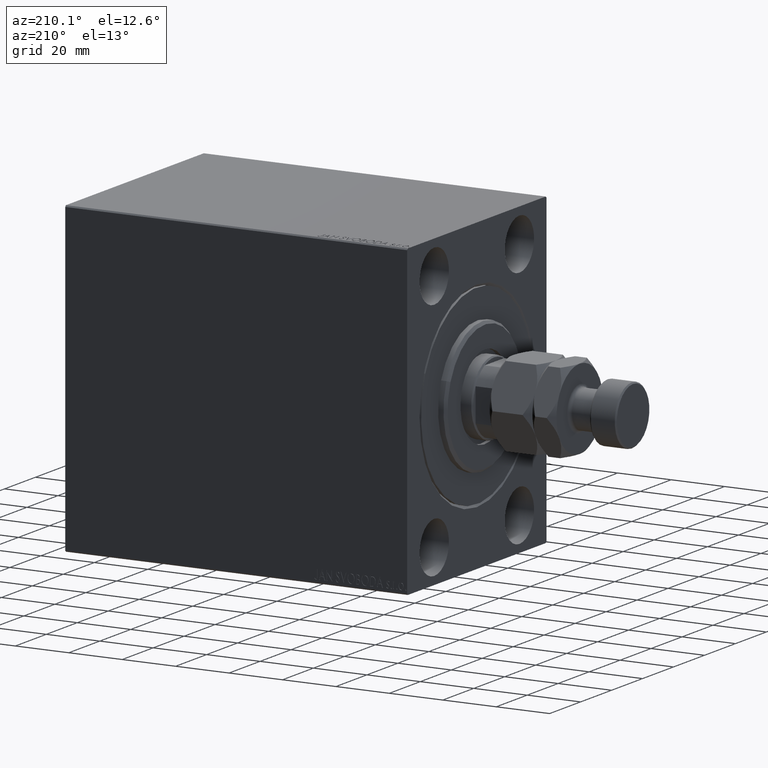
[diagram: clean part render]
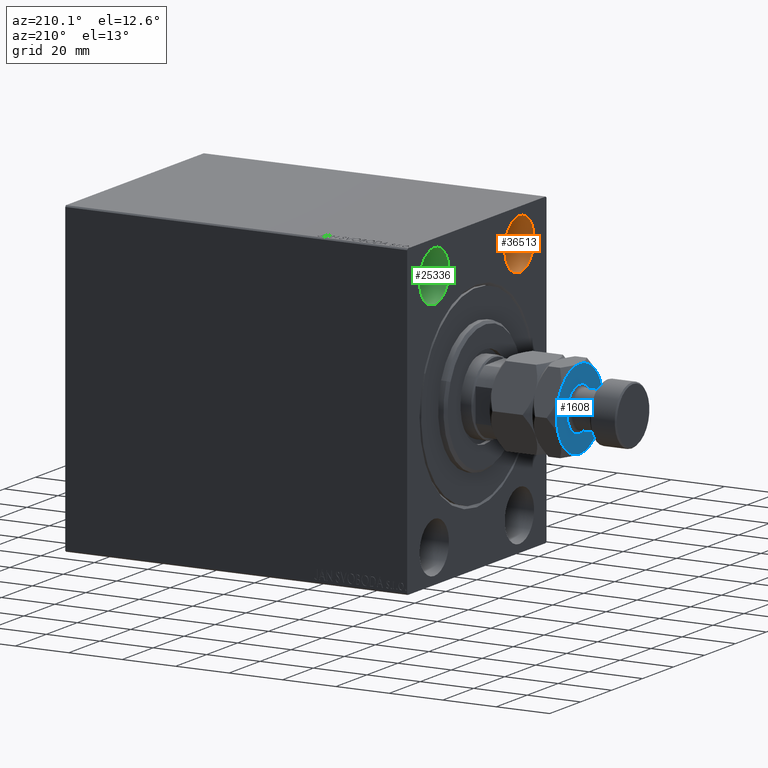
[diagram: same view with three faces highlighted in distinct colors, each labeled with its STEP entity id]
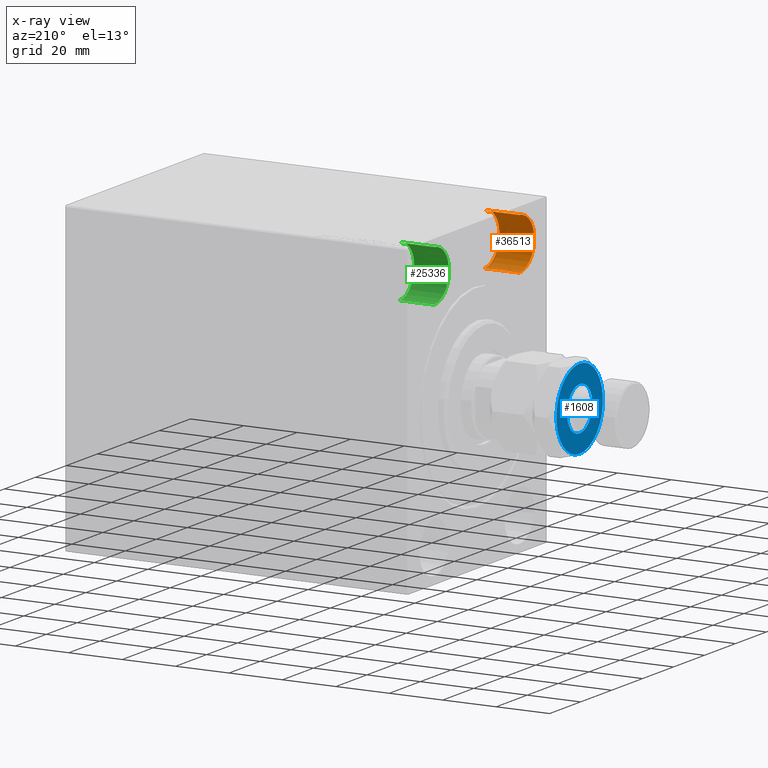
[diagram: x-ray of the same camera — body ghosted, the three highlighted faces saturated]
A machine part, auxiliary view with three faces highlighted in distinct colors.
The next image is the same camera in x-ray (body ghosted, the three faces saturated) — at least one of them is partly hidden behind the body in this view.
Their STEP definitions:

[orange] entity #36513 — the highlighted cylindrical surface (edge-blend (fillet) strip) has radius 9.5 mm, axis along (-1, -0, -0).
#218 = CYLINDRICAL_SURFACE ( 'NONE', #15590, 9.500000000000001776 ) ;
#1291 = VERTEX_POINT ( 'NONE', #5757 ) ;
#2718 = DIRECTION ( 'NONE',  ( -1.000000000000000000, 0.000000000000000000, 0.000000000000000000 ) ) ;
#3445 = FACE_OUTER_BOUND ( 'NONE', #36355, .T. ) ;
#4117 = DIRECTION ( 'NONE',  ( -1.000000000000000000, -0.000000000000000000, -0.000000000000000000 ) ) ;
#4625 = DIRECTION ( 'NONE',  ( 0.000000000000000000, 0.000000000000000000, 1.000000000000000000 ) ) ;
#5757 = CARTESIAN_POINT ( 'NONE',  ( 13.00000000000000000, -27.49999999999998934, 35.50000000000000711 ) ) ;
#6260 = ORIENTED_EDGE ( 'NONE', *, *, #25796, .F. ) ;
#7703 = LINE ( 'NONE', #15273, #30710 ) ;
#9232 = ORIENTED_EDGE ( 'NONE', *, *, #25450, .F. ) ;
#10353 = DIRECTION ( 'NONE',  ( 0.000000000000000000, 0.000000000000000000, 1.000000000000000000 ) ) ;
#11743 = DIRECTION ( 'NONE',  ( -1.000000000000000000, 0.000000000000000000, 0.000000000000000000 ) ) ;
#13750 = DIRECTION ( 'NONE',  ( 0.000000000000000000, 0.000000000000000000, 1.000000000000000000 ) ) ;
#15016 = VERTEX_POINT ( 'NONE', #45527 ) ;
#15273 = CARTESIAN_POINT ( 'NONE',  ( 13.00000000000000000, -27.49999999999998934, 54.50000000000000711 ) ) ;
#15295 = AXIS2_PLACEMENT_3D ( 'NONE', #16991, #2718, #13750 ) ;
#15590 = AXIS2_PLACEMENT_3D ( 'NONE', #31490, #4117, #10353 ) ;
#16991 = CARTESIAN_POINT ( 'NONE',  ( 13.00000000000000000, -27.49999999999998934, 45.00000000000000711 ) ) ;
#17962 = CARTESIAN_POINT ( 'NONE',  ( 0.000000000000000000, -27.49999999999998934, 35.50000000000000711 ) ) ;
#18280 = DIRECTION ( 'NONE',  ( -1.000000000000000000, -0.000000000000000000, -0.000000000000000000 ) ) ;
#20393 = LINE ( 'NONE', #39394, #29581 ) ;
#22794 = ORIENTED_EDGE ( 'NONE', *, *, #35605, .T. ) ;
#22893 = ORIENTED_EDGE ( 'NONE', *, *, #43234, .T. ) ;
#25450 = EDGE_CURVE ( 'NONE', #15016, #28563, #7703, .T. ) ;
#25796 = EDGE_CURVE ( 'NONE', #1291, #15016, #27034, .T. ) ;
#27034 = CIRCLE ( 'NONE', #15295, 9.500000000000001776 ) ;
#28563 = VERTEX_POINT ( 'NONE', #33165 ) ;
#29478 = AXIS2_PLACEMENT_3D ( 'NONE', #36331, #11743, #4625 ) ;
#29581 = VECTOR ( 'NONE', #18280, 1000.000000000000000 ) ;
#30710 = VECTOR ( 'NONE', #42615, 1000.000000000000000 ) ;
#31490 = CARTESIAN_POINT ( 'NONE',  ( 13.00000000000000000, -27.49999999999998934, 45.00000000000000711 ) ) ;
#33165 = CARTESIAN_POINT ( 'NONE',  ( 0.000000000000000000, -27.49999999999998934, 54.50000000000000711 ) ) ;
#33925 = CIRCLE ( 'NONE', #29478, 9.500000000000001776 ) ;
#35605 = EDGE_CURVE ( 'NONE', #44683, #28563, #33925, .T. ) ;
#36331 = CARTESIAN_POINT ( 'NONE',  ( 0.000000000000000000, -27.49999999999998934, 45.00000000000000711 ) ) ;
#36355 = EDGE_LOOP ( 'NONE', ( #6260, #22893, #22794, #9232 ) ) ;
#36513 = ADVANCED_FACE ( 'NONE', ( #3445 ), #218, .F. ) ;
#39394 = CARTESIAN_POINT ( 'NONE',  ( 13.00000000000000000, -27.49999999999998934, 35.50000000000000711 ) ) ;
#42615 = DIRECTION ( 'NONE',  ( -1.000000000000000000, -0.000000000000000000, -0.000000000000000000 ) ) ;
#43234 = EDGE_CURVE ( 'NONE', #1291, #44683, #20393, .T. ) ;
#44683 = VERTEX_POINT ( 'NONE', #17962 ) ;
#45527 = CARTESIAN_POINT ( 'NONE',  ( 13.00000000000000000, -27.49999999999998934, 54.50000000000000711 ) ) ;

[blue] entity #1608 — the highlighted planar face has unit normal (-1, 0, 0).
#777 = AXIS2_PLACEMENT_3D ( 'NONE', #45275, #13777, #34022 ) ;
#884 = DIRECTION ( 'NONE',  ( -0.000000000000000000, 0.000000000000000000, -1.000000000000000000 ) ) ;
#1608 = ADVANCED_FACE ( 'NONE', ( #38556, #27773 ), #24999, .T. ) ;
#2125 = VERTEX_POINT ( 'NONE', #27614 ) ;
#2628 = CARTESIAN_POINT ( 'NONE',  ( 7.500000000000001776, -12.99038105676657473, 25.00000000000000000 ) ) ;
#2785 = CIRCLE ( 'NONE', #10104, 8.200000000000001066 ) ;
#2934 = DIRECTION ( 'NONE',  ( 0.000000000000000000, -0.000000000000000000, 1.000000000000000000 ) ) ;
#3643 = AXIS2_PLACEMENT_3D ( 'NONE', #13972, #2934, #10529 ) ;
#4675 = EDGE_CURVE ( 'NONE', #33698, #30589, #25729, .T. ) ;
#5506 = DIRECTION ( 'NONE',  ( 0.000000000000000000, -0.000000000000000000, 1.000000000000000000 ) ) ;
#5582 = VERTEX_POINT ( 'NONE', #31455 ) ;
#5970 = DIRECTION ( 'NONE',  ( 1.000000000000000000, 0.000000000000000000, 0.000000000000000000 ) ) ;
#6470 = ORIENTED_EDGE ( 'NONE', *, *, #24788, .T. ) ;
#7414 = CIRCLE ( 'NONE', #37481, 8.200000000000001066 ) ;
#7803 = CARTESIAN_POINT ( 'NONE',  ( 7.499999999999998224, 12.99038105676657651, 25.00000000000000000 ) ) ;
#7819 = ORIENTED_EDGE ( 'NONE', *, *, #20759, .T. ) ;
#7869 = ORIENTED_EDGE ( 'NONE', *, *, #20490, .T. ) ;
#8446 = AXIS2_PLACEMENT_3D ( 'NONE', #22879, #39862, #12287 ) ;
#8982 = EDGE_CURVE ( 'NONE', #28338, #45029, #10349, .T. ) ;
#10104 = AXIS2_PLACEMENT_3D ( 'NONE', #21835, #884, #31484 ) ;
#10142 = DIRECTION ( 'NONE',  ( 0.000000000000000000, 0.000000000000000000, 1.000000000000000000 ) ) ;
#10349 = CIRCLE ( 'NONE', #777, 14.99999999999999645 ) ;
#10529 = DIRECTION ( 'NONE',  ( 1.000000000000000000, 0.000000000000000000, -0.000000000000000000 ) ) ;
#10562 = DIRECTION ( 'NONE',  ( 0.000000000000000000, -0.000000000000000000, 1.000000000000000000 ) ) ;
#11488 = EDGE_CURVE ( 'NONE', #45029, #33698, #27320, .T. ) ;
#12287 = DIRECTION ( 'NONE',  ( 1.000000000000000000, 0.000000000000000000, 0.000000000000000000 ) ) ;
#13013 = DIRECTION ( 'NONE',  ( -0.000000000000000000, 0.000000000000000000, -1.000000000000000000 ) ) ;
#13477 = VERTEX_POINT ( 'NONE', #7803 ) ;
#13777 = DIRECTION ( 'NONE',  ( 0.000000000000000000, -0.000000000000000000, 1.000000000000000000 ) ) ;
#13972 = CARTESIAN_POINT ( 'NONE',  ( 0.000000000000000000, 0.000000000000000000, 25.00000000000000000 ) ) ;
#15166 = EDGE_LOOP ( 'NONE', ( #18755, #7869, #35771, #7819, #27830, #26577 ) ) ;
#17847 = DIRECTION ( 'NONE',  ( 1.000000000000000000, 0.000000000000000000, 0.000000000000000000 ) ) ;
#18485 = CARTESIAN_POINT ( 'NONE',  ( 8.200000000000001066, 0.000000000000000000, 25.00000000000000000 ) ) ;
#18755 = ORIENTED_EDGE ( 'NONE', *, *, #4675, .T. ) ;
#18765 = CIRCLE ( 'NONE', #24626, 14.99999999999999645 ) ;
#18817 = CARTESIAN_POINT ( 'NONE',  ( 14.99999999999999645, 1.502314598737159426E-15, 25.00000000000000000 ) ) ;
#20490 = EDGE_CURVE ( 'NONE', #30589, #13477, #27553, .T. ) ;
#20759 = EDGE_CURVE ( 'NONE', #2125, #28338, #18765, .T. ) ;
#20914 = EDGE_CURVE ( 'NONE', #13477, #2125, #28279, .T. ) ;
#21835 = CARTESIAN_POINT ( 'NONE',  ( 0.000000000000000000, 0.000000000000000000, 25.00000000000000000 ) ) ;
#22879 = CARTESIAN_POINT ( 'NONE',  ( 0.000000000000000000, 0.000000000000000000, 25.00000000000000000 ) ) ;
#23256 = DIRECTION ( 'NONE',  ( 1.000000000000000000, 0.000000000000000000, 0.000000000000000000 ) ) ;
#24626 = AXIS2_PLACEMENT_3D ( 'NONE', #26418, #5506, #5970 ) ;
#24788 = EDGE_CURVE ( 'NONE', #39376, #5582, #2785, .T. ) ;
#24999 = PLANE ( 'NONE',  #3643 ) ;
#25729 = CIRCLE ( 'NONE', #35992, 14.99999999999999645 ) ;
#26418 = CARTESIAN_POINT ( 'NONE',  ( 0.000000000000000000, 0.000000000000000000, 25.00000000000000000 ) ) ;
#26577 = ORIENTED_EDGE ( 'NONE', *, *, #11488, .T. ) ;
#27320 = CIRCLE ( 'NONE', #34668, 14.99999999999999645 ) ;
#27397 = CARTESIAN_POINT ( 'NONE',  ( 0.000000000000000000, 0.000000000000000000, 25.00000000000000000 ) ) ;
#27553 = CIRCLE ( 'NONE', #29013, 14.99999999999999645 ) ;
#27614 = CARTESIAN_POINT ( 'NONE',  ( -7.500000000000000000, 12.99038105676657651, 25.00000000000000000 ) ) ;
#27773 = FACE_OUTER_BOUND ( 'NONE', #15166, .T. ) ;
#27830 = ORIENTED_EDGE ( 'NONE', *, *, #8982, .T. ) ;
#28279 = CIRCLE ( 'NONE', #8446, 14.99999999999999645 ) ;
#28338 = VERTEX_POINT ( 'NONE', #45396 ) ;
#28706 = DIRECTION ( 'NONE',  ( 1.000000000000000000, 0.000000000000000000, 0.000000000000000000 ) ) ;
#29013 = AXIS2_PLACEMENT_3D ( 'NONE', #41619, #10142, #31507 ) ;
#30589 = VERTEX_POINT ( 'NONE', #18817 ) ;
#31285 = DIRECTION ( 'NONE',  ( 0.000000000000000000, -0.000000000000000000, 1.000000000000000000 ) ) ;
#31453 = CARTESIAN_POINT ( 'NONE',  ( -7.500000000000000888, -12.99038105676657828, 25.00000000000000000 ) ) ;
#31455 = CARTESIAN_POINT ( 'NONE',  ( -8.200000000000001066, 1.004210375300829674E-15, 25.00000000000000000 ) ) ;
#31484 = DIRECTION ( 'NONE',  ( 1.000000000000000000, 0.000000000000000000, 0.000000000000000000 ) ) ;
#31507 = DIRECTION ( 'NONE',  ( 1.000000000000000000, 0.000000000000000000, 0.000000000000000000 ) ) ;
#31754 = EDGE_LOOP ( 'NONE', ( #6470, #33518 ) ) ;
#33518 = ORIENTED_EDGE ( 'NONE', *, *, #36945, .T. ) ;
#33698 = VERTEX_POINT ( 'NONE', #2628 ) ;
#34022 = DIRECTION ( 'NONE',  ( 1.000000000000000000, 0.000000000000000000, 0.000000000000000000 ) ) ;
#34668 = AXIS2_PLACEMENT_3D ( 'NONE', #42036, #10562, #28706 ) ;
#35771 = ORIENTED_EDGE ( 'NONE', *, *, #20914, .T. ) ;
#35992 = AXIS2_PLACEMENT_3D ( 'NONE', #27397, #31285, #23256 ) ;
#36945 = EDGE_CURVE ( 'NONE', #5582, #39376, #7414, .T. ) ;
#37481 = AXIS2_PLACEMENT_3D ( 'NONE', #44497, #13013, #17847 ) ;
#38556 = FACE_BOUND ( 'NONE', #31754, .T. ) ;
#39376 = VERTEX_POINT ( 'NONE', #18485 ) ;
#39862 = DIRECTION ( 'NONE',  ( 0.000000000000000000, -0.000000000000000000, 1.000000000000000000 ) ) ;
#41619 = CARTESIAN_POINT ( 'NONE',  ( 0.000000000000000000, 0.000000000000000000, 25.00000000000000000 ) ) ;
#42036 = CARTESIAN_POINT ( 'NONE',  ( 0.000000000000000000, 0.000000000000000000, 25.00000000000000000 ) ) ;
#44497 = CARTESIAN_POINT ( 'NONE',  ( 0.000000000000000000, 0.000000000000000000, 25.00000000000000000 ) ) ;
#45029 = VERTEX_POINT ( 'NONE', #31453 ) ;
#45275 = CARTESIAN_POINT ( 'NONE',  ( 0.000000000000000000, 0.000000000000000000, 25.00000000000000000 ) ) ;
#45396 = CARTESIAN_POINT ( 'NONE',  ( -14.99999999999999645, 0.000000000000000000, 25.00000000000000000 ) ) ;

[green] entity #25336 — the highlighted cylindrical surface (edge-blend (fillet) strip) has radius 9.5 mm, axis along (-1, -0, -0).
#397 = LINE ( 'NONE', #8659, #3714 ) ;
#2384 = CARTESIAN_POINT ( 'NONE',  ( 0.000000000000000000, 27.50000000000001066, 54.50000000000000711 ) ) ;
#3714 = VECTOR ( 'NONE', #18578, 1000.000000000000000 ) ;
#3915 = VECTOR ( 'NONE', #28862, 1000.000000000000000 ) ;
#5422 = DIRECTION ( 'NONE',  ( 0.000000000000000000, 0.000000000000000000, 1.000000000000000000 ) ) ;
#6445 = EDGE_CURVE ( 'NONE', #33342, #26169, #35341, .T. ) ;
#8005 = DIRECTION ( 'NONE',  ( -1.000000000000000000, 0.000000000000000000, 0.000000000000000000 ) ) ;
#8507 = DIRECTION ( 'NONE',  ( -1.000000000000000000, 0.000000000000000000, 0.000000000000000000 ) ) ;
#8659 = CARTESIAN_POINT ( 'NONE',  ( 13.00000000000000000, 27.50000000000001066, 54.50000000000000711 ) ) ;
#9786 = ORIENTED_EDGE ( 'NONE', *, *, #6445, .T. ) ;
#16247 = AXIS2_PLACEMENT_3D ( 'NONE', #21248, #8507, #32866 ) ;
#18074 = LINE ( 'NONE', #42632, #3915 ) ;
#18578 = DIRECTION ( 'NONE',  ( -1.000000000000000000, -0.000000000000000000, -0.000000000000000000 ) ) ;
#19653 = ORIENTED_EDGE ( 'NONE', *, *, #44119, .T. ) ;
#19931 = FACE_OUTER_BOUND ( 'NONE', #31945, .T. ) ;
#21248 = CARTESIAN_POINT ( 'NONE',  ( 13.00000000000000000, 27.50000000000001066, 45.00000000000000711 ) ) ;
#21598 = DIRECTION ( 'NONE',  ( 0.000000000000000000, 0.000000000000000000, 1.000000000000000000 ) ) ;
#21679 = ORIENTED_EDGE ( 'NONE', *, *, #36788, .F. ) ;
#23518 = VERTEX_POINT ( 'NONE', #35750 ) ;
#25034 = CARTESIAN_POINT ( 'NONE',  ( 13.00000000000000000, 27.50000000000001066, 54.50000000000000711 ) ) ;
#25336 = ADVANCED_FACE ( 'NONE', ( #19931 ), #30474, .F. ) ;
#26169 = VERTEX_POINT ( 'NONE', #2384 ) ;
#27858 = VERTEX_POINT ( 'NONE', #25034 ) ;
#28862 = DIRECTION ( 'NONE',  ( -1.000000000000000000, -0.000000000000000000, -0.000000000000000000 ) ) ;
#28931 = CARTESIAN_POINT ( 'NONE',  ( 0.000000000000000000, 27.50000000000001066, 45.00000000000000711 ) ) ;
#30474 = CYLINDRICAL_SURFACE ( 'NONE', #42444, 9.500000000000001776 ) ;
#30964 = CARTESIAN_POINT ( 'NONE',  ( 0.000000000000000000, 27.50000000000001066, 35.50000000000000711 ) ) ;
#31473 = ORIENTED_EDGE ( 'NONE', *, *, #32867, .F. ) ;
#31945 = EDGE_LOOP ( 'NONE', ( #31473, #19653, #9786, #21679 ) ) ;
#32866 = DIRECTION ( 'NONE',  ( 0.000000000000000000, 0.000000000000000000, 1.000000000000000000 ) ) ;
#32867 = EDGE_CURVE ( 'NONE', #23518, #27858, #43366, .T. ) ;
#33342 = VERTEX_POINT ( 'NONE', #30964 ) ;
#35341 = CIRCLE ( 'NONE', #40478, 9.500000000000001776 ) ;
#35750 = CARTESIAN_POINT ( 'NONE',  ( 13.00000000000000000, 27.50000000000001066, 35.50000000000000711 ) ) ;
#36788 = EDGE_CURVE ( 'NONE', #27858, #26169, #397, .T. ) ;
#40478 = AXIS2_PLACEMENT_3D ( 'NONE', #28931, #8005, #21598 ) ;
#41264 = CARTESIAN_POINT ( 'NONE',  ( 13.00000000000000000, 27.50000000000001066, 45.00000000000000711 ) ) ;
#42444 = AXIS2_PLACEMENT_3D ( 'NONE', #41264, #44488, #5422 ) ;
#42632 = CARTESIAN_POINT ( 'NONE',  ( 13.00000000000000000, 27.50000000000001066, 35.50000000000000711 ) ) ;
#43366 = CIRCLE ( 'NONE', #16247, 9.500000000000001776 ) ;
#44119 = EDGE_CURVE ( 'NONE', #23518, #33342, #18074, .T. ) ;
#44488 = DIRECTION ( 'NONE',  ( -1.000000000000000000, -0.000000000000000000, -0.000000000000000000 ) ) ;